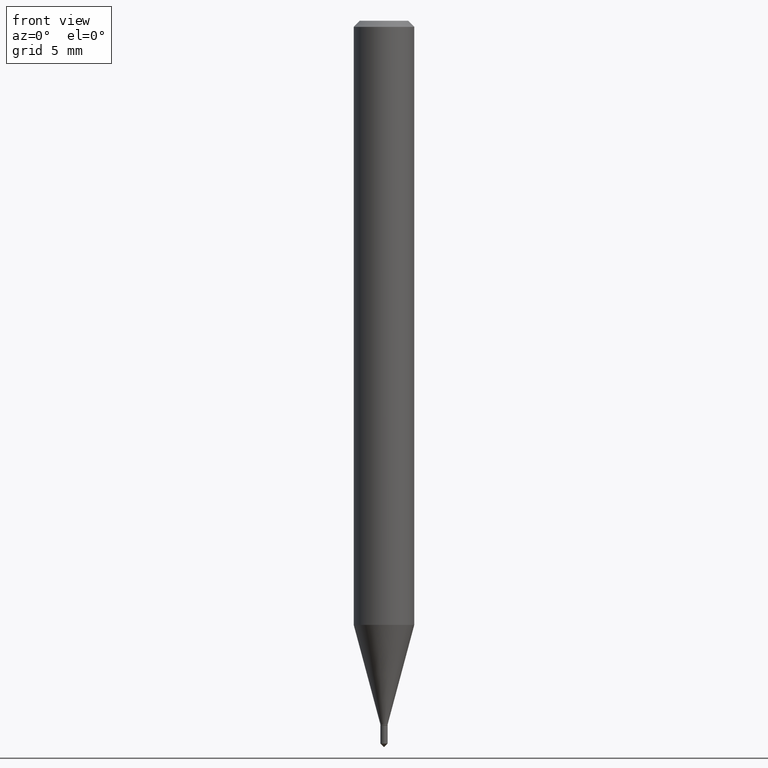
[diagram: clean part render]
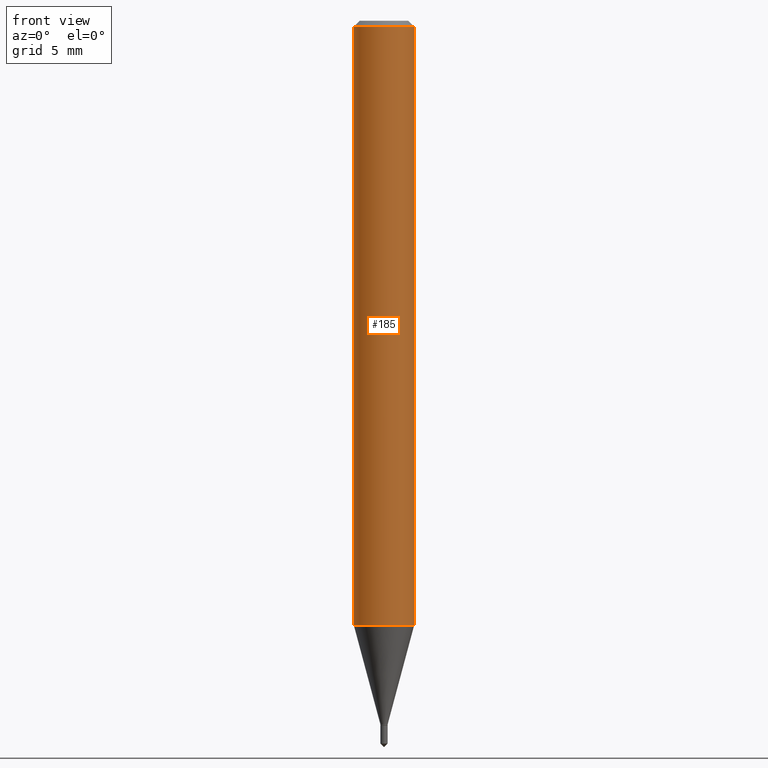
[diagram: same view with one face highlighted and labeled with its STEP entity id]
A machine part, front view. The second image highlights one B-rep face of the part: STEP entity #185.
In plain terms, the highlighted cylindrical surface (edge-blend (fillet) strip) has radius 1.5875 mm, axis along (-0, 0, 1).
Its self-contained STEP definition (entity closure, byte-faithful):
#5 = VECTOR ( 'NONE', #363, 39.37007874015748143 ) ;
#16 = DIRECTION ( 'NONE',  ( 1.000000000000000000, -6.982962677686266711E-15, 0.000000000000000000 ) ) ;
#25 = EDGE_CURVE ( 'NONE', #285, #354, #362, .T. ) ;
#51 = AXIS2_PLACEMENT_3D ( 'NONE', #82, #458, #484 ) ;
#79 = EDGE_CURVE ( 'NONE', #285, #263, #235, .T. ) ;
#81 = ORIENTED_EDGE ( 'NONE', *, *, #380, .T. ) ;
#82 = CARTESIAN_POINT ( 'NONE',  ( 3.050568773929722656E-29, -4.355403724674171112E-15, -1.247437205583711961 ) ) ;
#87 = DIRECTION ( 'NONE',  ( -2.445468806185136597E-29, 3.491481338843145583E-15, 1.000000000000000000 ) ) ;
#103 = EDGE_LOOP ( 'NONE', ( #398, #269, #81, #419 ) ) ;
#118 = VERTEX_POINT ( 'NONE', #138 ) ;
#131 = CARTESIAN_POINT ( 'NONE',  ( -0.06250000000000000000, -1.755434410854790748E-15, -0.01250000000000008396 ) ) ;
#136 = AXIS2_PLACEMENT_3D ( 'NONE', #167, #87, #383 ) ;
#138 = CARTESIAN_POINT ( 'NONE',  ( 0.06250000000000000000, -4.800786840909313294E-16, -0.01250000000000008396 ) ) ;
#167 = CARTESIAN_POINT ( 'NONE',  ( 0.000000000000000000, 0.000000000000000000, 0.000000000000000000 ) ) ;
#185 = ADVANCED_FACE ( 'NONE', ( #230 ), #426, .T. ) ;
#189 = CARTESIAN_POINT ( 'NONE',  ( -0.06250000000000016653, -3.911314514824107707E-15, -1.247437205583711961 ) ) ;
#201 = CARTESIAN_POINT ( 'NONE',  ( 0.06250000000000008327, -4.364351673553922611E-16, 3.047610484872464074E-30 ) ) ;
#202 = CARTESIAN_POINT ( 'NONE',  ( 3.056836007731441415E-31, -4.364351673553961684E-17, -0.01250000000000008396 ) ) ;
#210 = VECTOR ( 'NONE', #436, 39.37007874015748143 ) ;
#230 = FACE_OUTER_BOUND ( 'NONE', #103, .T. ) ;
#235 = CIRCLE ( 'NONE', #51, 0.06250000000000016653 ) ;
#242 = AXIS2_PLACEMENT_3D ( 'NONE', #202, #346, #16 ) ;
#263 = VERTEX_POINT ( 'NONE', #388 ) ;
#268 = EDGE_CURVE ( 'NONE', #354, #118, #368, .T. ) ;
#269 = ORIENTED_EDGE ( 'NONE', *, *, #79, .T. ) ;
#285 = VERTEX_POINT ( 'NONE', #189 ) ;
#346 = DIRECTION ( 'NONE',  ( -2.445468806185136597E-29, 3.491481338843145583E-15, 1.000000000000000000 ) ) ;
#352 = LINE ( 'NONE', #201, #5 ) ;
#354 = VERTEX_POINT ( 'NONE', #131 ) ;
#359 = CARTESIAN_POINT ( 'NONE',  ( -0.06250000000000008327, 4.440892098500632078E-16, -3.074334431409319967E-30 ) ) ;
#362 = LINE ( 'NONE', #359, #210 ) ;
#363 = DIRECTION ( 'NONE',  ( -2.445468806185136877E-29, 3.491481338843145188E-15, 1.000000000000000000 ) ) ;
#368 = CIRCLE ( 'NONE', #242, 0.06250000000000000000 ) ;
#380 = EDGE_CURVE ( 'NONE', #263, #118, #352, .T. ) ;
#383 = DIRECTION ( 'NONE',  ( 1.000000000000000000, -6.982962677686266711E-15, 4.876176775795935793E-29 ) ) ;
#388 = CARTESIAN_POINT ( 'NONE',  ( 0.06250000000000016653, -4.791838892029564359E-15, -1.247437205583711961 ) ) ;
#398 = ORIENTED_EDGE ( 'NONE', *, *, #25, .F. ) ;
#419 = ORIENTED_EDGE ( 'NONE', *, *, #268, .F. ) ;
#426 = CYLINDRICAL_SURFACE ( 'NONE', #136, 0.06250000000000008327 ) ;
#436 = DIRECTION ( 'NONE',  ( -2.445468806185136877E-29, 3.491481338843145188E-15, 1.000000000000000000 ) ) ;
#458 = DIRECTION ( 'NONE',  ( -2.445468806185136597E-29, 3.491481338843145583E-15, 1.000000000000000000 ) ) ;
#484 = DIRECTION ( 'NONE',  ( 1.000000000000000000, -6.982962677686259611E-15, 0.000000000000000000 ) ) ;